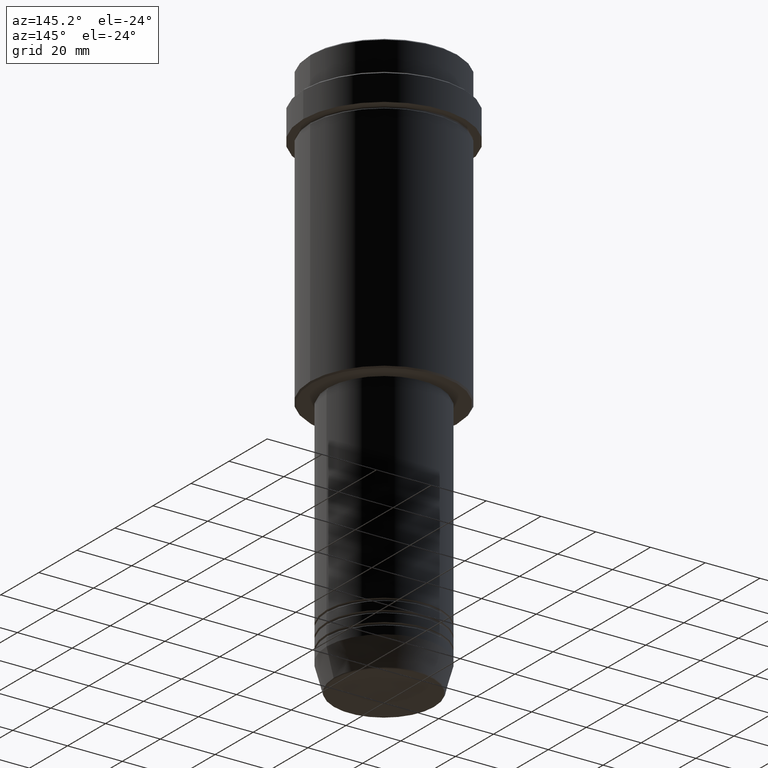
[diagram: clean part render]
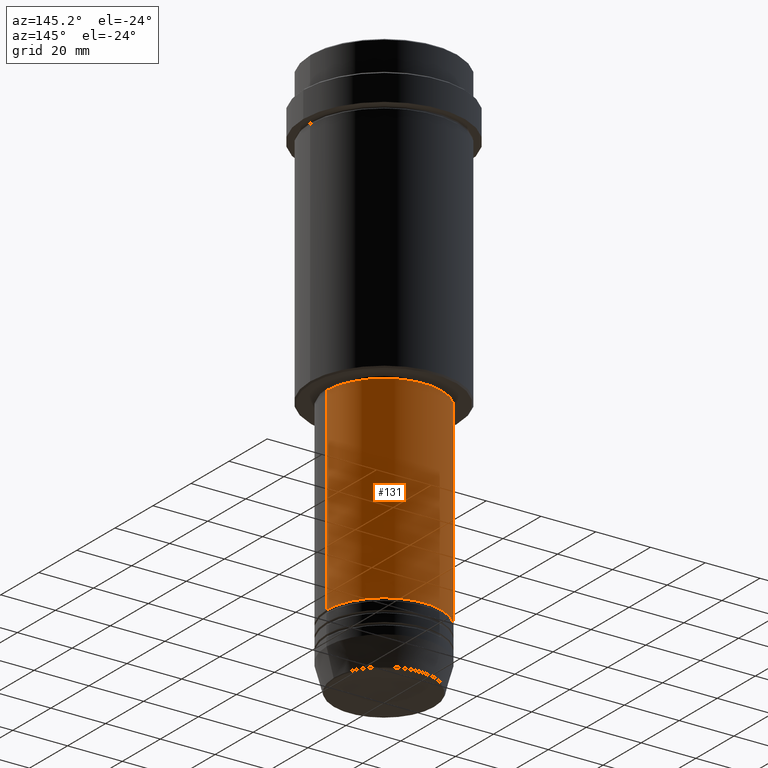
[diagram: same view with one face highlighted and labeled with its STEP entity id]
A machine part, auxiliary view. The second image highlights one B-rep face of the part: STEP entity #131.
In plain terms, the highlighted cylindrical surface (partial cylindrical patch) has radius 21 mm, axis along (-0, -0, 1).
Its self-contained STEP definition (entity closure, byte-faithful):
#48 = CARTESIAN_POINT ( 'NONE',  ( 0.000000000000000000, 0.000000000000000000, -109.0000000000000142 ) ) ;
#61 = CARTESIAN_POINT ( 'NONE',  ( 21.00000000000000000, 0.000000000000000000, -180.9999999999999147 ) ) ;
#94 = EDGE_CURVE ( 'NONE', #1200, #516, #1305, .T. ) ;
#131 = ADVANCED_FACE ( 'NONE', ( #1131 ), #1107, .T. ) ;
#158 = DIRECTION ( 'NONE',  ( -0.000000000000000000, -0.000000000000000000, 1.000000000000000000 ) ) ;
#210 = ORIENTED_EDGE ( 'NONE', *, *, #94, .F. ) ;
#266 = DIRECTION ( 'NONE',  ( -0.000000000000000000, -0.000000000000000000, 1.000000000000000000 ) ) ;
#313 = CARTESIAN_POINT ( 'NONE',  ( -21.00000000000000000, 2.571758278209441661E-15, -109.0000000000000142 ) ) ;
#319 = ORIENTED_EDGE ( 'NONE', *, *, #361, .T. ) ;
#359 = DIRECTION ( 'NONE',  ( -0.000000000000000000, -0.000000000000000000, 1.000000000000000000 ) ) ;
#361 = EDGE_CURVE ( 'NONE', #1200, #732, #1090, .T. ) ;
#382 = LINE ( 'NONE', #389, #1276 ) ;
#383 = DIRECTION ( 'NONE',  ( -0.000000000000000000, -0.000000000000000000, 1.000000000000000000 ) ) ;
#389 = CARTESIAN_POINT ( 'NONE',  ( -21.00000000000000000, 2.571758278209441661E-15, 0.000000000000000000 ) ) ;
#395 = DIRECTION ( 'NONE',  ( -0.000000000000000000, -0.000000000000000000, 1.000000000000000000 ) ) ;
#473 = CARTESIAN_POINT ( 'NONE',  ( 21.00000000000000000, 0.000000000000000000, 0.000000000000000000 ) ) ;
#500 = CARTESIAN_POINT ( 'NONE',  ( -21.00000000000000000, 2.571758278209441661E-15, -180.9999999999999147 ) ) ;
#516 = VERTEX_POINT ( 'NONE', #1292 ) ;
#519 = AXIS2_PLACEMENT_3D ( 'NONE', #613, #383, #598 ) ;
#533 = EDGE_CURVE ( 'NONE', #516, #933, #839, .T. ) ;
#583 = CARTESIAN_POINT ( 'NONE',  ( 0.000000000000000000, 0.000000000000000000, 0.000000000000000000 ) ) ;
#598 = DIRECTION ( 'NONE',  ( 1.000000000000000000, 0.000000000000000000, 0.000000000000000000 ) ) ;
#613 = CARTESIAN_POINT ( 'NONE',  ( 0.000000000000000000, 0.000000000000000000, -180.9999999999999147 ) ) ;
#713 = EDGE_CURVE ( 'NONE', #732, #933, #382, .T. ) ;
#732 = VERTEX_POINT ( 'NONE', #500 ) ;
#786 = ORIENTED_EDGE ( 'NONE', *, *, #533, .F. ) ;
#839 = CIRCLE ( 'NONE', #948, 21.00000000000000000 ) ;
#933 = VERTEX_POINT ( 'NONE', #313 ) ;
#948 = AXIS2_PLACEMENT_3D ( 'NONE', #48, #359, #1212 ) ;
#1017 = VECTOR ( 'NONE', #266, 1000.000000000000000 ) ;
#1090 = CIRCLE ( 'NONE', #519, 21.00000000000000000 ) ;
#1107 = CYLINDRICAL_SURFACE ( 'NONE', #1346, 21.00000000000000000 ) ;
#1131 = FACE_OUTER_BOUND ( 'NONE', #1170, .T. ) ;
#1170 = EDGE_LOOP ( 'NONE', ( #319, #1234, #786, #210 ) ) ;
#1200 = VERTEX_POINT ( 'NONE', #61 ) ;
#1212 = DIRECTION ( 'NONE',  ( 1.000000000000000000, 0.000000000000000000, 0.000000000000000000 ) ) ;
#1234 = ORIENTED_EDGE ( 'NONE', *, *, #713, .T. ) ;
#1276 = VECTOR ( 'NONE', #395, 1000.000000000000000 ) ;
#1292 = CARTESIAN_POINT ( 'NONE',  ( 21.00000000000000000, 0.000000000000000000, -109.0000000000000142 ) ) ;
#1305 = LINE ( 'NONE', #473, #1017 ) ;
#1346 = AXIS2_PLACEMENT_3D ( 'NONE', #583, #158, #1349 ) ;
#1349 = DIRECTION ( 'NONE',  ( 1.000000000000000000, 0.000000000000000000, 0.000000000000000000 ) ) ;